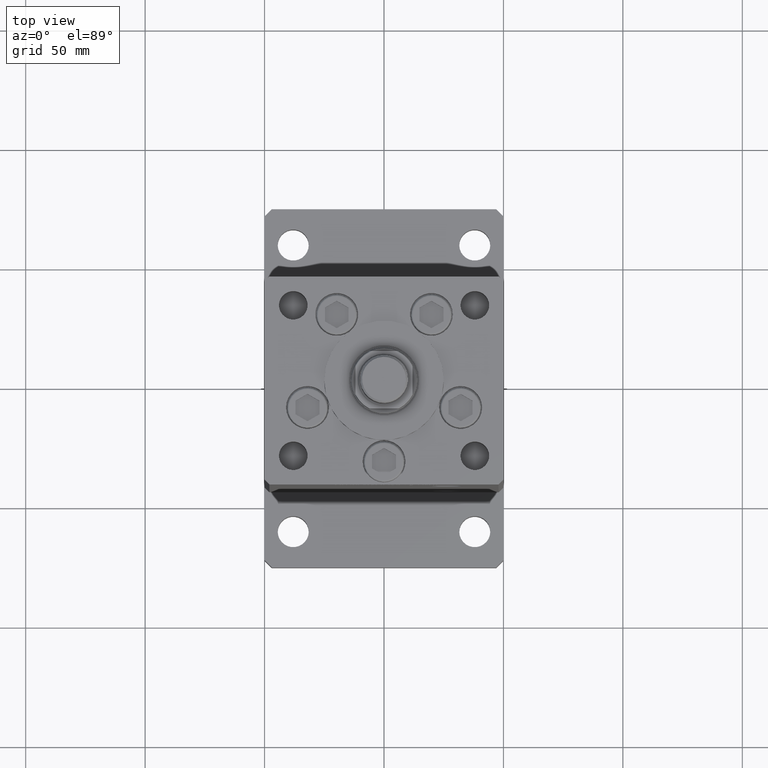
[diagram: clean part render]
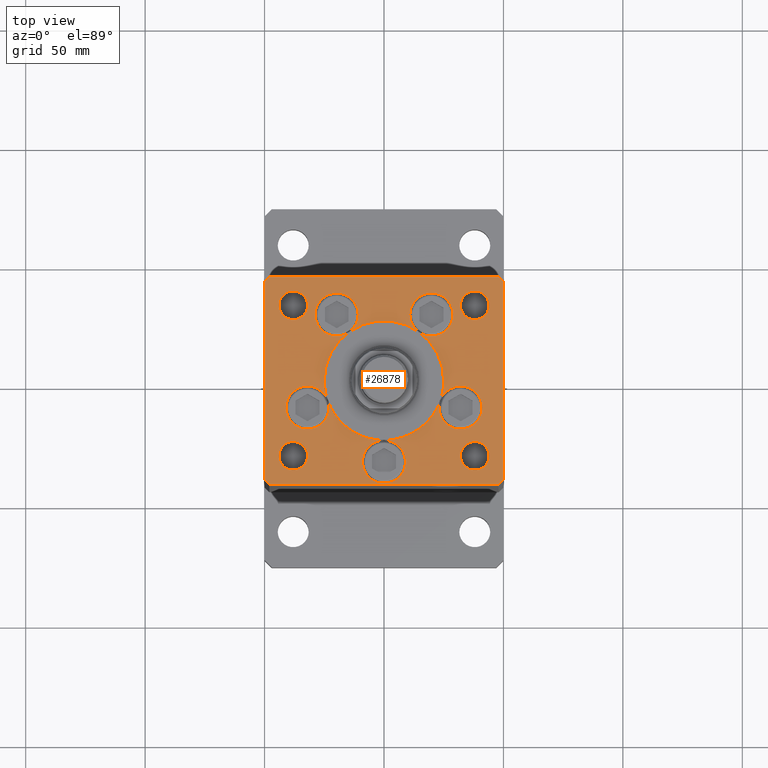
[diagram: same view with one face highlighted and labeled with its STEP entity id]
A machine part, top view. The second image highlights one B-rep face of the part: STEP entity #26878.
In plain terms, the highlighted planar face has unit normal (0, 0, 1).
Its self-contained STEP definition (entity closure, byte-faithful):
#3 = CARTESIAN_POINT ( 'NONE',  ( 47.99999999999999289, 43.50000000000000000, 0.000000000000000000 ) ) ;
#598 = CARTESIAN_POINT ( 'NONE',  ( 32.05550741379015989, -11.33333333333332860, 0.000000000000000000 ) ) ;
#667 = CIRCLE ( 'NONE', #3303, 25.00000000000000000 ) ;
#891 = CIRCLE ( 'NONE', #23657, 9.000000000000000000 ) ;
#965 = CARTESIAN_POINT ( 'NONE',  ( -44.00000000000001421, -31.50000000000000711, 0.000000000000000000 ) ) ;
#986 = CARTESIAN_POINT ( 'NONE',  ( -32.05550741379015989, -11.33333333333332860, 0.000000000000000000 ) ) ;
#1105 = DIRECTION ( 'NONE',  ( 1.000000000000000000, 1.156482317317871331E-15, 0.000000000000000000 ) ) ;
#1152 = EDGE_CURVE ( 'NONE', #31640, #33315, #29205, .T. ) ;
#1207 = CARTESIAN_POINT ( 'NONE',  ( -48.00000000000000000, 43.49999999999997868, 0.000000000000000000 ) ) ;
#1381 = CARTESIAN_POINT ( 'NONE',  ( -48.00000000000000711, -43.50000000000002842, 0.000000000000000000 ) ) ;
#1693 = CIRCLE ( 'NONE', #53256, 9.000000000000000000 ) ;
#1959 = VERTEX_POINT ( 'NONE', #13268 ) ;
#2215 = EDGE_CURVE ( 'NONE', #42425, #34746, #8274, .T. ) ;
#2223 = DIRECTION ( 'NONE',  ( -0.000000000000000000, -0.000000000000000000, -1.000000000000000000 ) ) ;
#2246 = VECTOR ( 'NONE', #4507, 999.9999999999998863 ) ;
#2359 = EDGE_LOOP ( 'NONE', ( #34415, #16614 ) ) ;
#2571 = VERTEX_POINT ( 'NONE', #38317 ) ;
#2843 = LINE ( 'NONE', #40626, #11025 ) ;
#2959 = CIRCLE ( 'NONE', #44928, 25.00000000000000000 ) ;
#2978 = ORIENTED_EDGE ( 'NONE', *, *, #52863, .F. ) ;
#3171 = VERTEX_POINT ( 'NONE', #35017 ) ;
#3224 = AXIS2_PLACEMENT_3D ( 'NONE', #34520, #47105, #51182 ) ;
#3228 = VECTOR ( 'NONE', #36549, 1000.000000000000114 ) ;
#3303 = AXIS2_PLACEMENT_3D ( 'NONE', #25249, #8570, #16787 ) ;
#3568 = DIRECTION ( 'NONE',  ( 1.000000000000000000, 0.000000000000000000, 0.000000000000000000 ) ) ;
#3700 = CARTESIAN_POINT ( 'NONE',  ( -44.00000000000000000, 31.50000000000000000, 0.000000000000000000 ) ) ;
#3720 = EDGE_LOOP ( 'NONE', ( #15620, #44111 ) ) ;
#3787 = VERTEX_POINT ( 'NONE', #27740 ) ;
#3934 = VERTEX_POINT ( 'NONE', #26861 ) ;
#4327 = EDGE_LOOP ( 'NONE', ( #35259, #21652, #14473, #26244, #41835, #54111, #17299, #13829 ) ) ;
#4369 = ORIENTED_EDGE ( 'NONE', *, *, #21024, .F. ) ;
#4507 = DIRECTION ( 'NONE',  ( -0.7071067811865512365, 0.7071067811865439090, 0.000000000000000000 ) ) ;
#4556 = EDGE_CURVE ( 'NONE', #51218, #11620, #42018, .T. ) ;
#4808 = DIRECTION ( 'NONE',  ( 0.000000000000000000, 0.000000000000000000, 1.000000000000000000 ) ) ;
#4831 = CIRCLE ( 'NONE', #15324, 9.000000000000000000 ) ;
#4944 = CIRCLE ( 'NONE', #47770, 9.000000000000000000 ) ;
#4959 = CARTESIAN_POINT ( 'NONE',  ( 50.00000000000000000, -41.49999999999992895, 0.000000000000000000 ) ) ;
#5057 = DIRECTION ( 'NONE',  ( 1.000000000000000000, 0.000000000000000000, 0.000000000000000000 ) ) ;
#5105 = AXIS2_PLACEMENT_3D ( 'NONE', #50958, #9395, #38679 ) ;
#5139 = DIRECTION ( 'NONE',  ( 1.000000000000000000, 0.000000000000000000, 0.000000000000000000 ) ) ;
#5602 = CARTESIAN_POINT ( 'NONE',  ( 9.000000000000000000, -34.00000000000000000, 0.000000000000000000 ) ) ;
#5621 = AXIS2_PLACEMENT_3D ( 'NONE', #38158, #17903, #37882 ) ;
#5637 = CARTESIAN_POINT ( 'NONE',  ( -49.99999999999999289, -41.50000000000000000, 0.000000000000000000 ) ) ;
#5706 = ORIENTED_EDGE ( 'NONE', *, *, #37725, .F. ) ;
#5947 = DIRECTION ( 'NONE',  ( 0.000000000000000000, 1.000000000000000000, 0.000000000000000000 ) ) ;
#6228 = FACE_BOUND ( 'NONE', #3720, .T. ) ;
#6543 = DIRECTION ( 'NONE',  ( 0.000000000000000000, 0.000000000000000000, 1.000000000000000000 ) ) ;
#6562 = AXIS2_PLACEMENT_3D ( 'NONE', #15960, #41677, #20329 ) ;
#6844 = DIRECTION ( 'NONE',  ( 1.000000000000000000, 0.000000000000000000, 0.000000000000000000 ) ) ;
#7222 = CARTESIAN_POINT ( 'NONE',  ( -38.00000000000000711, -31.50000000000000711, 0.000000000000000000 ) ) ;
#7391 = CARTESIAN_POINT ( 'NONE',  ( -10.82068048781375147, 27.62499999999998934, 0.000000000000000000 ) ) ;
#7550 = ORIENTED_EDGE ( 'NONE', *, *, #52939, .F. ) ;
#7675 = EDGE_CURVE ( 'NONE', #2571, #45341, #39028, .T. ) ;
#7876 = ORIENTED_EDGE ( 'NONE', *, *, #47587, .F. ) ;
#7884 = CARTESIAN_POINT ( 'NONE',  ( 25.00000000000000000, -3.877276906038844941E-15, 0.000000000000000000 ) ) ;
#7925 = CARTESIAN_POINT ( 'NONE',  ( -19.82068048781374969, 27.62499999999998934, 0.000000000000000000 ) ) ;
#8075 = DIRECTION ( 'NONE',  ( 0.000000000000000000, 0.000000000000000000, 1.000000000000000000 ) ) ;
#8274 = CIRCLE ( 'NONE', #6562, 25.00000000000000000 ) ;
#8364 = AXIS2_PLACEMENT_3D ( 'NONE', #27026, #18285, #5139 ) ;
#8461 = DIRECTION ( 'NONE',  ( 0.000000000000000000, 0.000000000000000000, 1.000000000000000000 ) ) ;
#8570 = DIRECTION ( 'NONE',  ( 0.000000000000000000, 0.000000000000000000, 1.000000000000000000 ) ) ;
#8722 = DIRECTION ( 'NONE',  ( 1.000000000000000000, 0.000000000000000000, 0.000000000000000000 ) ) ;
#8727 = DIRECTION ( 'NONE',  ( 1.000000000000000000, 0.000000000000000000, 0.000000000000000000 ) ) ;
#8731 = CIRCLE ( 'NONE', #33224, 5.999999999999998224 ) ;
#9102 = EDGE_CURVE ( 'NONE', #30593, #14236, #47371, .T. ) ;
#9126 = EDGE_CURVE ( 'NONE', #19502, #42425, #19835, .T. ) ;
#9169 = CARTESIAN_POINT ( 'NONE',  ( 50.00000000000000000, 41.50000000000000711, 0.000000000000000000 ) ) ;
#9224 = DIRECTION ( 'NONE',  ( 0.000000000000000000, 0.000000000000000000, 1.000000000000000000 ) ) ;
#9252 = FACE_BOUND ( 'NONE', #2359, .T. ) ;
#9395 = DIRECTION ( 'NONE',  ( 0.000000000000000000, 0.000000000000000000, 1.000000000000000000 ) ) ;
#9434 = ORIENTED_EDGE ( 'NONE', *, *, #9126, .F. ) ;
#9991 = EDGE_CURVE ( 'NONE', #2571, #33315, #13791, .T. ) ;
#10204 = CARTESIAN_POINT ( 'NONE',  ( 44.00000000000000000, 31.50000000000000000, 0.000000000000000000 ) ) ;
#10289 = AXIS2_PLACEMENT_3D ( 'NONE', #28595, #8075, #33506 ) ;
#10326 = DIRECTION ( 'NONE',  ( 1.000000000000000000, 0.000000000000000000, 0.000000000000000000 ) ) ;
#10727 = ORIENTED_EDGE ( 'NONE', *, *, #29102, .F. ) ;
#10777 = EDGE_CURVE ( 'NONE', #52385, #2571, #25181, .T. ) ;
#11025 = VECTOR ( 'NONE', #44991, 1000.000000000000114 ) ;
#11081 = EDGE_CURVE ( 'NONE', #27753, #3171, #33895, .T. ) ;
#11226 = DIRECTION ( 'NONE',  ( 0.000000000000000000, 0.000000000000000000, 1.000000000000000000 ) ) ;
#11267 = DIRECTION ( 'NONE',  ( 0.000000000000000000, 0.000000000000000000, 1.000000000000000000 ) ) ;
#11461 = VERTEX_POINT ( 'NONE', #965 ) ;
#11620 = VERTEX_POINT ( 'NONE', #3 ) ;
#11641 = DIRECTION ( 'NONE',  ( 0.000000000000000000, 0.000000000000000000, 1.000000000000000000 ) ) ;
#11716 = DIRECTION ( 'NONE',  ( -1.000000000000000000, 0.000000000000000000, 0.000000000000000000 ) ) ;
#11798 = DIRECTION ( 'NONE',  ( 0.000000000000000000, 0.000000000000000000, 1.000000000000000000 ) ) ;
#12104 = AXIS2_PLACEMENT_3D ( 'NONE', #598, #17614, #25801 ) ;
#12304 = VERTEX_POINT ( 'NONE', #17975 ) ;
#12582 = DIRECTION ( 'NONE',  ( 1.000000000000000000, 0.000000000000000000, 0.000000000000000000 ) ) ;
#12727 = ORIENTED_EDGE ( 'NONE', *, *, #10777, .F. ) ;
#13268 = CARTESIAN_POINT ( 'NONE',  ( -23.05550741379015633, -11.33333333333332860, 0.000000000000000000 ) ) ;
#13638 = FACE_OUTER_BOUND ( 'NONE', #4327, .T. ) ;
#13791 = CIRCLE ( 'NONE', #10289, 25.00000000000000000 ) ;
#13829 = ORIENTED_EDGE ( 'NONE', *, *, #40056, .T. ) ;
#13882 = CARTESIAN_POINT ( 'NONE',  ( 10.82068048781375147, 27.62499999999998934, 0.000000000000000000 ) ) ;
#14033 = AXIS2_PLACEMENT_3D ( 'NONE', #50743, #47200, #5057 ) ;
#14236 = VERTEX_POINT ( 'NONE', #36592 ) ;
#14452 = FACE_BOUND ( 'NONE', #21045, .T. ) ;
#14473 = ORIENTED_EDGE ( 'NONE', *, *, #27343, .T. ) ;
#14516 = AXIS2_PLACEMENT_3D ( 'NONE', #44055, #6543, #19146 ) ;
#14737 = AXIS2_PLACEMENT_3D ( 'NONE', #40239, #11226, #6844 ) ;
#15324 = AXIS2_PLACEMENT_3D ( 'NONE', #16446, #33134, #49809 ) ;
#15620 = ORIENTED_EDGE ( 'NONE', *, *, #44868, .T. ) ;
#15639 = VERTEX_POINT ( 'NONE', #29640 ) ;
#15797 = ORIENTED_EDGE ( 'NONE', *, *, #9991, .F. ) ;
#15960 = CARTESIAN_POINT ( 'NONE',  ( 0.000000000000000000, -6.938893903907228378E-15, 0.000000000000000000 ) ) ;
#16038 = EDGE_CURVE ( 'NONE', #45625, #15639, #36566, .T. ) ;
#16096 = DIRECTION ( 'NONE',  ( 1.000000000000000000, 0.000000000000000000, 0.000000000000000000 ) ) ;
#16125 = DIRECTION ( 'NONE',  ( 1.000000000000000000, 0.000000000000000000, 0.000000000000000000 ) ) ;
#16446 = CARTESIAN_POINT ( 'NONE',  ( -19.82068048781374969, 27.62499999999998934, 0.000000000000000000 ) ) ;
#16608 = DIRECTION ( 'NONE',  ( 1.000000000000000000, 0.000000000000000000, 0.000000000000000000 ) ) ;
#16614 = ORIENTED_EDGE ( 'NONE', *, *, #11081, .T. ) ;
#16664 = VERTEX_POINT ( 'NONE', #17356 ) ;
#16678 = DIRECTION ( 'NONE',  ( 0.000000000000000000, 0.000000000000000000, 1.000000000000000000 ) ) ;
#16693 = DIRECTION ( 'NONE',  ( -0.7071067811865524577, -0.7071067811865426878, 0.000000000000000000 ) ) ;
#16787 = DIRECTION ( 'NONE',  ( 1.000000000000000000, 0.000000000000000000, 0.000000000000000000 ) ) ;
#17192 = AXIS2_PLACEMENT_3D ( 'NONE', #23956, #37100, #40661 ) ;
#17197 = CIRCLE ( 'NONE', #35575, 8.999999999999998224 ) ;
#17299 = ORIENTED_EDGE ( 'NONE', *, *, #39889, .T. ) ;
#17356 = CARTESIAN_POINT ( 'NONE',  ( -50.00000000000000711, 41.49999999999999289, 0.000000000000000000 ) ) ;
#17542 = AXIS2_PLACEMENT_3D ( 'NONE', #35912, #2223, #39207 ) ;
#17549 = CARTESIAN_POINT ( 'NONE',  ( 28.82068048781374969, 27.62499999999998934, 0.000000000000000000 ) ) ;
#17614 = DIRECTION ( 'NONE',  ( 0.000000000000000000, 0.000000000000000000, 1.000000000000000000 ) ) ;
#17903 = DIRECTION ( 'NONE',  ( 0.000000000000000000, 0.000000000000000000, 1.000000000000000000 ) ) ;
#17975 = CARTESIAN_POINT ( 'NONE',  ( -49.99999999999999289, -41.50000000000000000, 0.000000000000000000 ) ) ;
#18016 = FACE_BOUND ( 'NONE', #42723, .T. ) ;
#18066 = AXIS2_PLACEMENT_3D ( 'NONE', #7222, #23914, #40618 ) ;
#18124 = CARTESIAN_POINT ( 'NONE',  ( -48.00000000000000711, -43.50000000000002842, 0.000000000000000000 ) ) ;
#18238 = CARTESIAN_POINT ( 'NONE',  ( 14.57402977045128623, 20.31249999999998579, 0.000000000000000000 ) ) ;
#18285 = DIRECTION ( 'NONE',  ( -0.000000000000000000, 0.000000000000000000, 1.000000000000000000 ) ) ;
#18507 = EDGE_CURVE ( 'NONE', #43059, #51218, #43180, .T. ) ;
#18853 = CARTESIAN_POINT ( 'NONE',  ( 23.05550741379015633, -11.33333333333332682, 0.000000000000000000 ) ) ;
#18870 = VERTEX_POINT ( 'NONE', #1207 ) ;
#18941 = CARTESIAN_POINT ( 'NONE',  ( 47.99999999999999289, 43.50000000000000000, 0.000000000000000000 ) ) ;
#19146 = DIRECTION ( 'NONE',  ( 1.000000000000000000, 0.000000000000000000, 0.000000000000000000 ) ) ;
#19379 = CARTESIAN_POINT ( 'NONE',  ( 0.000000000000000000, -6.938893903907228378E-15, 0.000000000000000000 ) ) ;
#19502 = VERTEX_POINT ( 'NONE', #13882 ) ;
#19739 = DIRECTION ( 'NONE',  ( -0.000000000000000000, -0.000000000000000000, -1.000000000000000000 ) ) ;
#19835 = CIRCLE ( 'NONE', #3224, 8.999999999999998224 ) ;
#19918 = AXIS2_PLACEMENT_3D ( 'NONE', #47794, #34677, #10326 ) ;
#20154 = CIRCLE ( 'NONE', #30615, 25.00000000000000000 ) ;
#20329 = DIRECTION ( 'NONE',  ( 1.000000000000000000, 0.000000000000000000, 0.000000000000000000 ) ) ;
#20401 = VERTEX_POINT ( 'NONE', #7391 ) ;
#21024 = EDGE_CURVE ( 'NONE', #21709, #42425, #2959, .T. ) ;
#21045 = EDGE_LOOP ( 'NONE', ( #21921, #38020 ) ) ;
#21056 = CARTESIAN_POINT ( 'NONE',  ( -48.00000000000000000, 43.49999999999997868, 0.000000000000000000 ) ) ;
#21240 = EDGE_LOOP ( 'NONE', ( #2978, #41624 ) ) ;
#21521 = VERTEX_POINT ( 'NONE', #24302 ) ;
#21652 = ORIENTED_EDGE ( 'NONE', *, *, #9102, .T. ) ;
#21709 = VERTEX_POINT ( 'NONE', #7884 ) ;
#21862 = AXIS2_PLACEMENT_3D ( 'NONE', #986, #9224, #25905 ) ;
#21921 = ORIENTED_EDGE ( 'NONE', *, *, #16038, .F. ) ;
#22568 = CARTESIAN_POINT ( 'NONE',  ( -25.00000000000000000, -6.938893903907228378E-15, 0.000000000000000000 ) ) ;
#22655 = VECTOR ( 'NONE', #16693, 1000.000000000000000 ) ;
#22751 = VERTEX_POINT ( 'NONE', #3700 ) ;
#22885 = DIRECTION ( 'NONE',  ( 1.000000000000000000, 0.000000000000000000, 0.000000000000000000 ) ) ;
#23000 = VERTEX_POINT ( 'NONE', #30377 ) ;
#23657 = AXIS2_PLACEMENT_3D ( 'NONE', #49276, #11798, #3568 ) ;
#23708 = AXIS2_PLACEMENT_3D ( 'NONE', #49005, #19739, #32051 ) ;
#23914 = DIRECTION ( 'NONE',  ( 0.000000000000000000, 0.000000000000000000, 1.000000000000000000 ) ) ;
#23956 = CARTESIAN_POINT ( 'NONE',  ( -32.05550741379015989, -11.33333333333332860, 0.000000000000000000 ) ) ;
#24059 = DIRECTION ( 'NONE',  ( 0.000000000000000000, 0.000000000000000000, 1.000000000000000000 ) ) ;
#24257 = ORIENTED_EDGE ( 'NONE', *, *, #33445, .F. ) ;
#24288 = CARTESIAN_POINT ( 'NONE',  ( -19.82068048781374969, 27.62499999999998934, 0.000000000000000000 ) ) ;
#24302 = CARTESIAN_POINT ( 'NONE',  ( -32.00000000000000000, -31.50000000000000711, 0.000000000000000000 ) ) ;
#24304 = DIRECTION ( 'NONE',  ( 0.000000000000000000, 0.000000000000000000, 1.000000000000000000 ) ) ;
#25181 = CIRCLE ( 'NONE', #19918, 25.00000000000000000 ) ;
#25249 = CARTESIAN_POINT ( 'NONE',  ( 0.000000000000000000, -6.938893903907228378E-15, 0.000000000000000000 ) ) ;
#25787 = EDGE_CURVE ( 'NONE', #20401, #23000, #4831, .T. ) ;
#25801 = DIRECTION ( 'NONE',  ( 1.000000000000000000, 0.000000000000000000, 0.000000000000000000 ) ) ;
#25905 = DIRECTION ( 'NONE',  ( 1.000000000000000000, 0.000000000000000000, 0.000000000000000000 ) ) ;
#26172 = ORIENTED_EDGE ( 'NONE', *, *, #36049, .F. ) ;
#26244 = ORIENTED_EDGE ( 'NONE', *, *, #18507, .T. ) ;
#26750 = FACE_BOUND ( 'NONE', #21240, .T. ) ;
#26861 = CARTESIAN_POINT ( 'NONE',  ( -32.00000000000000000, 31.50000000000000000, 0.000000000000000000 ) ) ;
#26878 = ADVANCED_FACE ( 'NONE', ( #18016, #6228, #14452, #26750, #13638, #9252 ), #31132, .T. ) ;
#27026 = CARTESIAN_POINT ( 'NONE',  ( 0.000000000000000000, 0.000000000000000000, 0.000000000000000000 ) ) ;
#27111 = ORIENTED_EDGE ( 'NONE', *, *, #29036, .F. ) ;
#27343 = EDGE_CURVE ( 'NONE', #14236, #43059, #2843, .T. ) ;
#27740 = CARTESIAN_POINT ( 'NONE',  ( -9.000000000000000000, -34.00000000000000000, 0.000000000000000000 ) ) ;
#27753 = VERTEX_POINT ( 'NONE', #48240 ) ;
#28036 = CIRCLE ( 'NONE', #17542, 6.000000000000005329 ) ;
#28128 = DIRECTION ( 'NONE',  ( 1.672022627447525486E-16, -1.000000000000000000, 0.000000000000000000 ) ) ;
#28230 = VERTEX_POINT ( 'NONE', #18853 ) ;
#28595 = CARTESIAN_POINT ( 'NONE',  ( 0.000000000000000000, -6.938893903907228378E-15, 0.000000000000000000 ) ) ;
#28675 = DIRECTION ( 'NONE',  ( 0.000000000000000000, 0.000000000000000000, 1.000000000000000000 ) ) ;
#28753 = EDGE_CURVE ( 'NONE', #42425, #37907, #17197, .T. ) ;
#28771 = VECTOR ( 'NONE', #28128, 1000.000000000000000 ) ;
#28943 = DIRECTION ( 'NONE',  ( 1.000000000000000000, 0.000000000000000000, 0.000000000000000000 ) ) ;
#29036 = EDGE_CURVE ( 'NONE', #34746, #52385, #46005, .T. ) ;
#29102 = EDGE_CURVE ( 'NONE', #33315, #3787, #4944, .T. ) ;
#29205 = CIRCLE ( 'NONE', #5621, 9.000000000000000000 ) ;
#29640 = CARTESIAN_POINT ( 'NONE',  ( 32.00000000000000000, 31.50000000000000000, 0.000000000000000000 ) ) ;
#29823 = EDGE_CURVE ( 'NONE', #15639, #45625, #50411, .T. ) ;
#30377 = CARTESIAN_POINT ( 'NONE',  ( -28.82068048781374969, 27.62499999999998934, 0.000000000000000000 ) ) ;
#30593 = VERTEX_POINT ( 'NONE', #18124 ) ;
#30615 = AXIS2_PLACEMENT_3D ( 'NONE', #19379, #4808, #16608 ) ;
#30713 = LINE ( 'NONE', #18941, #37657 ) ;
#31055 = CARTESIAN_POINT ( 'NONE',  ( -41.05550741379015989, -11.33333333333332682, 0.000000000000000000 ) ) ;
#31132 = PLANE ( 'NONE',  #8364 ) ;
#31366 = CARTESIAN_POINT ( 'NONE',  ( 0.000000000000000000, -6.938893903907228378E-15, 0.000000000000000000 ) ) ;
#31640 = VERTEX_POINT ( 'NONE', #5602 ) ;
#32051 = DIRECTION ( 'NONE',  ( -1.000000000000000000, 0.000000000000000000, 0.000000000000000000 ) ) ;
#32547 = EDGE_CURVE ( 'NONE', #11461, #21521, #39898, .T. ) ;
#32887 = AXIS2_PLACEMENT_3D ( 'NONE', #33631, #8461, #8727 ) ;
#33040 = DIRECTION ( 'NONE',  ( 0.000000000000000000, 0.000000000000000000, 1.000000000000000000 ) ) ;
#33134 = DIRECTION ( 'NONE',  ( 0.000000000000000000, 0.000000000000000000, 1.000000000000000000 ) ) ;
#33224 = AXIS2_PLACEMENT_3D ( 'NONE', #41271, #40732, #11716 ) ;
#33315 = VERTEX_POINT ( 'NONE', #50034 ) ;
#33445 = EDGE_CURVE ( 'NONE', #37907, #19502, #52984, .T. ) ;
#33506 = DIRECTION ( 'NONE',  ( 1.000000000000000000, 0.000000000000000000, 0.000000000000000000 ) ) ;
#33631 = CARTESIAN_POINT ( 'NONE',  ( 19.82068048781374969, 27.62499999999998934, 0.000000000000000000 ) ) ;
#33895 = CIRCLE ( 'NONE', #41795, 6.000000000000005329 ) ;
#33953 = CARTESIAN_POINT ( 'NONE',  ( 23.57022603955158502, -8.333333333333332149, 0.000000000000000000 ) ) ;
#34012 = EDGE_CURVE ( 'NONE', #12304, #30593, #43147, .T. ) ;
#34415 = ORIENTED_EDGE ( 'NONE', *, *, #52691, .T. ) ;
#34426 = ORIENTED_EDGE ( 'NONE', *, *, #25787, .F. ) ;
#34520 = CARTESIAN_POINT ( 'NONE',  ( 19.82068048781374969, 27.62499999999998934, 0.000000000000000000 ) ) ;
#34677 = DIRECTION ( 'NONE',  ( 0.000000000000000000, 0.000000000000000000, 1.000000000000000000 ) ) ;
#34746 = VERTEX_POINT ( 'NONE', #49723 ) ;
#34966 = CARTESIAN_POINT ( 'NONE',  ( 50.00000000000000000, -41.49999999999992895, 0.000000000000000000 ) ) ;
#35017 = CARTESIAN_POINT ( 'NONE',  ( 44.00000000000001421, -31.50000000000000711, 0.000000000000000000 ) ) ;
#35259 = ORIENTED_EDGE ( 'NONE', *, *, #34012, .T. ) ;
#35552 = CARTESIAN_POINT ( 'NONE',  ( -50.00000000000000711, 41.49999999999999289, 0.000000000000000000 ) ) ;
#35556 = ORIENTED_EDGE ( 'NONE', *, *, #41979, .F. ) ;
#35575 = AXIS2_PLACEMENT_3D ( 'NONE', #45161, #37233, #12582 ) ;
#35724 = CIRCLE ( 'NONE', #5105, 9.000000000000001776 ) ;
#35866 = AXIS2_PLACEMENT_3D ( 'NONE', #24288, #33040, #45361 ) ;
#35904 = CIRCLE ( 'NONE', #35866, 9.000000000000000000 ) ;
#35912 = CARTESIAN_POINT ( 'NONE',  ( 38.00000000000000711, -31.50000000000000711, 0.000000000000000000 ) ) ;
#36049 = EDGE_CURVE ( 'NONE', #46625, #21709, #667, .T. ) ;
#36157 = ORIENTED_EDGE ( 'NONE', *, *, #38087, .F. ) ;
#36443 = CARTESIAN_POINT ( 'NONE',  ( -38.00000000000000711, -31.50000000000000711, 0.000000000000000000 ) ) ;
#36549 = DIRECTION ( 'NONE',  ( 0.7071067811865402453, -0.7071067811865549002, 0.000000000000000000 ) ) ;
#36566 = CIRCLE ( 'NONE', #14737, 5.999999999999998224 ) ;
#36592 = CARTESIAN_POINT ( 'NONE',  ( 48.00000000000000711, -43.49999999999992184, 0.000000000000000000 ) ) ;
#37100 = DIRECTION ( 'NONE',  ( 0.000000000000000000, 0.000000000000000000, 1.000000000000000000 ) ) ;
#37233 = DIRECTION ( 'NONE',  ( 0.000000000000000000, 0.000000000000000000, 1.000000000000000000 ) ) ;
#37657 = VECTOR ( 'NONE', #44119, 1000.000000000000000 ) ;
#37718 = EDGE_CURVE ( 'NONE', #39702, #46625, #35724, .T. ) ;
#37725 = EDGE_CURVE ( 'NONE', #28230, #39702, #48779, .T. ) ;
#37882 = DIRECTION ( 'NONE',  ( 1.000000000000000000, 0.000000000000000000, 0.000000000000000000 ) ) ;
#37907 = VERTEX_POINT ( 'NONE', #17549 ) ;
#38020 = ORIENTED_EDGE ( 'NONE', *, *, #29823, .F. ) ;
#38087 = EDGE_CURVE ( 'NONE', #1959, #2571, #40045, .T. ) ;
#38158 = CARTESIAN_POINT ( 'NONE',  ( 0.000000000000000000, -34.00000000000000000, 0.000000000000000000 ) ) ;
#38317 = CARTESIAN_POINT ( 'NONE',  ( -23.57022603955158502, -8.333333333333332149, 0.000000000000000000 ) ) ;
#38351 = ORIENTED_EDGE ( 'NONE', *, *, #1152, .F. ) ;
#38525 = AXIS2_PLACEMENT_3D ( 'NONE', #36443, #11267, #44389 ) ;
#38679 = DIRECTION ( 'NONE',  ( 1.000000000000000000, 0.000000000000000000, 0.000000000000000000 ) ) ;
#39028 = CIRCLE ( 'NONE', #17192, 9.000000000000001776 ) ;
#39180 = CARTESIAN_POINT ( 'NONE',  ( 41.05550741379015989, -11.33333333333332860, 0.000000000000000000 ) ) ;
#39207 = DIRECTION ( 'NONE',  ( -1.000000000000000000, 0.000000000000000000, 0.000000000000000000 ) ) ;
#39540 = DIRECTION ( 'NONE',  ( -1.000000000000000000, 0.000000000000000000, 0.000000000000000000 ) ) ;
#39702 = VERTEX_POINT ( 'NONE', #39180 ) ;
#39807 = ORIENTED_EDGE ( 'NONE', *, *, #52321, .F. ) ;
#39889 = EDGE_CURVE ( 'NONE', #18870, #16664, #54156, .T. ) ;
#39898 = CIRCLE ( 'NONE', #18066, 6.000000000000005329 ) ;
#40045 = CIRCLE ( 'NONE', #47031, 9.000000000000001776 ) ;
#40056 = EDGE_CURVE ( 'NONE', #16664, #12304, #52483, .T. ) ;
#40239 = CARTESIAN_POINT ( 'NONE',  ( 38.00000000000000000, 31.50000000000000000, 0.000000000000000000 ) ) ;
#40492 = CARTESIAN_POINT ( 'NONE',  ( -32.05550741379015989, -11.33333333333332860, 0.000000000000000000 ) ) ;
#40618 = DIRECTION ( 'NONE',  ( 1.000000000000000000, 0.000000000000000000, 0.000000000000000000 ) ) ;
#40626 = CARTESIAN_POINT ( 'NONE',  ( 48.00000000000000711, -43.49999999999992184, 0.000000000000000000 ) ) ;
#40661 = DIRECTION ( 'NONE',  ( 1.000000000000000000, 0.000000000000000000, 0.000000000000000000 ) ) ;
#40732 = DIRECTION ( 'NONE',  ( -0.000000000000000000, -0.000000000000000000, -1.000000000000000000 ) ) ;
#41271 = CARTESIAN_POINT ( 'NONE',  ( -38.00000000000000000, 31.50000000000000000, 0.000000000000000000 ) ) ;
#41553 = ORIENTED_EDGE ( 'NONE', *, *, #7675, .F. ) ;
#41624 = ORIENTED_EDGE ( 'NONE', *, *, #32547, .F. ) ;
#41677 = DIRECTION ( 'NONE',  ( 0.000000000000000000, 0.000000000000000000, 1.000000000000000000 ) ) ;
#41795 = AXIS2_PLACEMENT_3D ( 'NONE', #43642, #42553, #39540 ) ;
#41835 = ORIENTED_EDGE ( 'NONE', *, *, #4556, .T. ) ;
#41979 = EDGE_CURVE ( 'NONE', #34746, #20401, #1693, .T. ) ;
#42018 = LINE ( 'NONE', #9169, #2246 ) ;
#42425 = VERTEX_POINT ( 'NONE', #18238 ) ;
#42547 = AXIS2_PLACEMENT_3D ( 'NONE', #53564, #28675, #16096 ) ;
#42553 = DIRECTION ( 'NONE',  ( -0.000000000000000000, -0.000000000000000000, -1.000000000000000000 ) ) ;
#42702 = ORIENTED_EDGE ( 'NONE', *, *, #28753, .F. ) ;
#42723 = EDGE_LOOP ( 'NONE', ( #50501, #9434, #24257, #42702, #4369, #26172, #51461, #5706, #39807, #7876, #38351, #7550, #10727, #15797, #36157, #44834, #41553, #12727, #27111, #47583, #34426, #35556 ) ) ;
#42935 = CIRCLE ( 'NONE', #23708, 5.999999999999998224 ) ;
#43059 = VERTEX_POINT ( 'NONE', #4959 ) ;
#43147 = LINE ( 'NONE', #5637, #3228 ) ;
#43180 = LINE ( 'NONE', #34966, #44857 ) ;
#43456 = VECTOR ( 'NONE', #1105, 1000.000000000000000 ) ;
#43642 = CARTESIAN_POINT ( 'NONE',  ( 38.00000000000000711, -31.50000000000000711, 0.000000000000000000 ) ) ;
#44055 = CARTESIAN_POINT ( 'NONE',  ( 38.00000000000000000, 31.50000000000000000, 0.000000000000000000 ) ) ;
#44111 = ORIENTED_EDGE ( 'NONE', *, *, #51286, .T. ) ;
#44119 = DIRECTION ( 'NONE',  ( -1.000000000000000000, -2.168404344971008868E-16, 0.000000000000000000 ) ) ;
#44389 = DIRECTION ( 'NONE',  ( 1.000000000000000000, 0.000000000000000000, 0.000000000000000000 ) ) ;
#44834 = ORIENTED_EDGE ( 'NONE', *, *, #51539, .F. ) ;
#44857 = VECTOR ( 'NONE', #5947, 1000.000000000000000 ) ;
#44868 = EDGE_CURVE ( 'NONE', #3934, #22751, #42935, .T. ) ;
#44928 = AXIS2_PLACEMENT_3D ( 'NONE', #31366, #11641, #22885 ) ;
#44991 = DIRECTION ( 'NONE',  ( 0.7071067811865474617, 0.7071067811865474617, 0.000000000000000000 ) ) ;
#45161 = CARTESIAN_POINT ( 'NONE',  ( 19.82068048781374969, 27.62499999999998934, 0.000000000000000000 ) ) ;
#45341 = VERTEX_POINT ( 'NONE', #31055 ) ;
#45361 = DIRECTION ( 'NONE',  ( 1.000000000000000000, 0.000000000000000000, 0.000000000000000000 ) ) ;
#45466 = CIRCLE ( 'NONE', #21862, 9.000000000000001776 ) ;
#45625 = VERTEX_POINT ( 'NONE', #10204 ) ;
#45902 = CARTESIAN_POINT ( 'NONE',  ( 0.000000000000000000, -34.00000000000000000, 0.000000000000000000 ) ) ;
#46005 = CIRCLE ( 'NONE', #42547, 25.00000000000000000 ) ;
#46625 = VERTEX_POINT ( 'NONE', #33953 ) ;
#47031 = AXIS2_PLACEMENT_3D ( 'NONE', #40492, #24059, #16125 ) ;
#47105 = DIRECTION ( 'NONE',  ( 0.000000000000000000, 0.000000000000000000, 1.000000000000000000 ) ) ;
#47200 = DIRECTION ( 'NONE',  ( 0.000000000000000000, 0.000000000000000000, 1.000000000000000000 ) ) ;
#47371 = LINE ( 'NONE', #1381, #43456 ) ;
#47583 = ORIENTED_EDGE ( 'NONE', *, *, #48382, .F. ) ;
#47587 = EDGE_CURVE ( 'NONE', #33315, #46625, #20154, .T. ) ;
#47770 = AXIS2_PLACEMENT_3D ( 'NONE', #45902, #24304, #28943 ) ;
#47794 = CARTESIAN_POINT ( 'NONE',  ( 0.000000000000000000, -6.938893903907228378E-15, 0.000000000000000000 ) ) ;
#48086 = CIRCLE ( 'NONE', #14033, 9.000000000000001776 ) ;
#48117 = CIRCLE ( 'NONE', #38525, 6.000000000000005329 ) ;
#48240 = CARTESIAN_POINT ( 'NONE',  ( 32.00000000000000000, -31.50000000000000711, 0.000000000000000000 ) ) ;
#48382 = EDGE_CURVE ( 'NONE', #23000, #34746, #35904, .T. ) ;
#48779 = CIRCLE ( 'NONE', #12104, 9.000000000000001776 ) ;
#49005 = CARTESIAN_POINT ( 'NONE',  ( -38.00000000000000000, 31.50000000000000000, 0.000000000000000000 ) ) ;
#49276 = CARTESIAN_POINT ( 'NONE',  ( 0.000000000000000000, -34.00000000000000000, 0.000000000000000000 ) ) ;
#49723 = CARTESIAN_POINT ( 'NONE',  ( -14.57402977045128978, 20.31249999999999289, 0.000000000000000000 ) ) ;
#49809 = DIRECTION ( 'NONE',  ( 1.000000000000000000, 0.000000000000000000, 0.000000000000000000 ) ) ;
#50034 = CARTESIAN_POINT ( 'NONE',  ( 0.000000000000000000, -25.00000000000000000, 0.000000000000000000 ) ) ;
#50411 = CIRCLE ( 'NONE', #14516, 5.999999999999998224 ) ;
#50501 = ORIENTED_EDGE ( 'NONE', *, *, #2215, .F. ) ;
#50743 = CARTESIAN_POINT ( 'NONE',  ( 32.05550741379015989, -11.33333333333332860, 0.000000000000000000 ) ) ;
#50958 = CARTESIAN_POINT ( 'NONE',  ( 32.05550741379015989, -11.33333333333332860, 0.000000000000000000 ) ) ;
#51182 = DIRECTION ( 'NONE',  ( 1.000000000000000000, 0.000000000000000000, 0.000000000000000000 ) ) ;
#51218 = VERTEX_POINT ( 'NONE', #52487 ) ;
#51286 = EDGE_CURVE ( 'NONE', #22751, #3934, #8731, .T. ) ;
#51461 = ORIENTED_EDGE ( 'NONE', *, *, #37718, .F. ) ;
#51539 = EDGE_CURVE ( 'NONE', #45341, #1959, #45466, .T. ) ;
#52321 = EDGE_CURVE ( 'NONE', #46625, #28230, #48086, .T. ) ;
#52385 = VERTEX_POINT ( 'NONE', #22568 ) ;
#52483 = LINE ( 'NONE', #35552, #28771 ) ;
#52487 = CARTESIAN_POINT ( 'NONE',  ( 50.00000000000000000, 41.50000000000000711, 0.000000000000000000 ) ) ;
#52691 = EDGE_CURVE ( 'NONE', #3171, #27753, #28036, .T. ) ;
#52704 = EDGE_CURVE ( 'NONE', #11620, #18870, #30713, .T. ) ;
#52863 = EDGE_CURVE ( 'NONE', #21521, #11461, #48117, .T. ) ;
#52939 = EDGE_CURVE ( 'NONE', #3787, #31640, #891, .T. ) ;
#52984 = CIRCLE ( 'NONE', #32887, 8.999999999999998224 ) ;
#53256 = AXIS2_PLACEMENT_3D ( 'NONE', #7925, #16678, #8722 ) ;
#53564 = CARTESIAN_POINT ( 'NONE',  ( 0.000000000000000000, -6.938893903907228378E-15, 0.000000000000000000 ) ) ;
#54111 = ORIENTED_EDGE ( 'NONE', *, *, #52704, .T. ) ;
#54156 = LINE ( 'NONE', #21056, #22655 ) ;